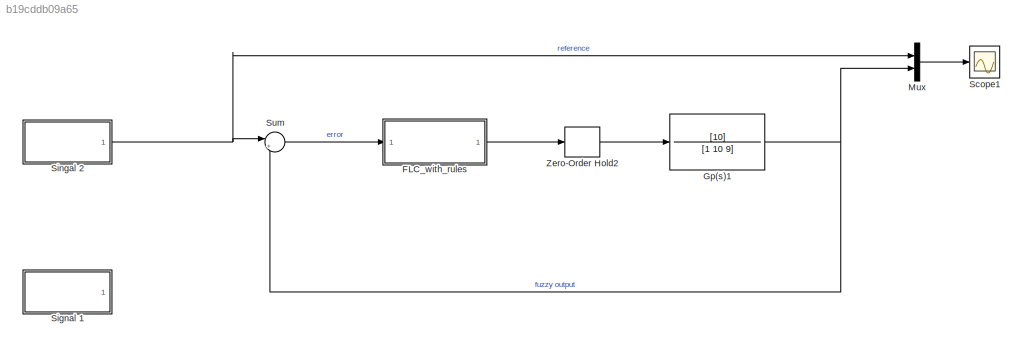
MODEL slx_b19cddb09a65
KIND model
CONFIG AbsTol = auto
CONFIG EnableMultiTasking = off
CONFIG FixedStep = auto
CONFIG MaxStep = auto
CONFIG MinStep = auto
CONFIG RelTol = 1e-3
CONFIG SampleTimeConstraint = Unconstrained
CONFIG Solver = VariableStepAuto
CONFIG SolverName = VariableStepAuto
CONFIG StartTime = 0.0
CONFIG StopTime = 12
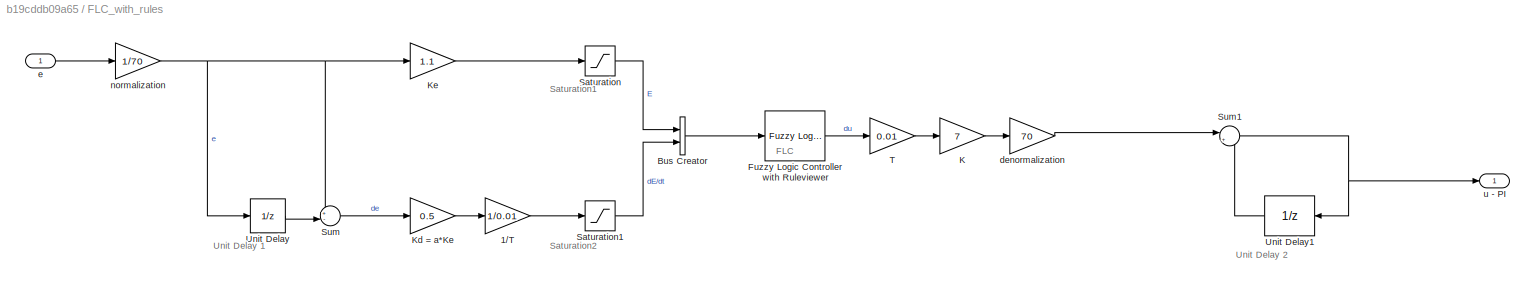
BLOCK [SubSystem] FLC_with_rules
  Ports = [1, 1]
  RequestExecContextInheritance = off
BLOCK [Gain] FLC_with_rules/1//T
  Gain = 1/0.01
  OutDataTypeStr = Inherit: Inherit via internal rule
  ParamDataTypeStr = Inherit: Inherit via internal rule
  SaturateOnIntegerOverflow = off
BLOCK [BusCreator] FLC_with_rules/Bus Creator
  DisplayOption = bar
  InheritFromInputs = on
  Inputs = 2
  Ports = [2, 1]
BLOCK [Reference] FLC_with_rules/Fuzzy Logic Controller with Ruleviewer  REF=fuzblock/Fuzzy Logic   (lib defined in mdl_858b3b3e7478)
Controller 
with Ruleviewer
  Ports = [1, 1]
  SourceBlock = fuzblock/Fuzzy Logic \nController \nwith Ruleviewer
  SourceProductBaseCode = FL
  SourceProductName = Fuzzy Logic Toolbox
  SourceType = Fuzzy Inference System
BLOCK [Gain] FLC_with_rules/K
  Gain = 7
  OutDataTypeStr = Inherit: Inherit via internal rule
  ParamDataTypeStr = Inherit: Inherit via internal rule
  SaturateOnIntegerOverflow = off
BLOCK [Gain] FLC_with_rules/Kd = a*Ke
  Gain = 0.5
  OutDataTypeStr = Inherit: Inherit via internal rule
  ParamDataTypeStr = Inherit: Inherit via internal rule
  SaturateOnIntegerOverflow = off
BLOCK [Gain] FLC_with_rules/Ke
  Gain = 1.1
  OutDataTypeStr = Inherit: Inherit via internal rule
  ParamDataTypeStr = Inherit: Inherit via internal rule
  SaturateOnIntegerOverflow = off
BLOCK [Saturate] FLC_with_rules/Saturation
  InputPortMap = u0
  LowerLimit = -1
  Ports = [1, 1]
  UpperLimit = 1
BLOCK [Saturate] FLC_with_rules/Saturation1
  InputPortMap = u0
  LowerLimit = -1
  Ports = [1, 1]
  UpperLimit = 1
BLOCK [Sum] FLC_with_rules/Sum
  IconShape = round
  InputSameDT = off
  Inputs = +-|
  OutDataTypeStr = Inherit: Inherit via internal rule
  Ports = [2, 1]
  SaturateOnIntegerOverflow = off
BLOCK [Sum] FLC_with_rules/Sum1
  IconShape = round
  InputSameDT = off
  Inputs = |++
  OutDataTypeStr = Inherit: Inherit via internal rule
  Ports = [2, 1]
  SaturateOnIntegerOverflow = off
BLOCK [Gain] FLC_with_rules/T
  Gain = 0.01
  OutDataTypeStr = Inherit: Inherit via internal rule
  ParamDataTypeStr = Inherit: Inherit via internal rule
  SaturateOnIntegerOverflow = off
BLOCK [UnitDelay] FLC_with_rules/Unit Delay
  HasFrameUpgradeWarning = on
  SampleTime = -1
BLOCK [UnitDelay] FLC_with_rules/Unit Delay1
  HasFrameUpgradeWarning = on
  SampleTime = -1
BLOCK [Gain] FLC_with_rules/denormalization
  Gain = 70
  OutDataTypeStr = Inherit: Inherit via internal rule
  ParamDataTypeStr = Inherit: Inherit via internal rule
  SaturateOnIntegerOverflow = off
BLOCK [Inport] FLC_with_rules/e
  IconDisplay = Port number
BLOCK [Gain] FLC_with_rules/normalization
  Gain = 1/70
  OutDataTypeStr = Inherit: Inherit via internal rule
  ParamDataTypeStr = Inherit: Inherit via internal rule
  SaturateOnIntegerOverflow = off
BLOCK [Outport] FLC_with_rules/u - PI
  IconDisplay = Port number
BLOCK [TransferFcn] Gp(s)1
  Denominator = [1 10 9]
  Numerator = [10]
BLOCK [Mux] Mux
  DisplayOption = bar
  Inputs = 2
  Ports = [2, 1]
BLOCK [Scope] Scope1
  Floating = off
  NumInputPorts = 1
  Ports = [1]
  ScopeSpecificationString = Simulink.scopes.TimeScopeBlockCfg('CurrentConfiguration', extmgr.ConfigurationSet(extmgr.Configuration('Core','General UI',true),extmgr.Configuration('Core','Source UI',true),extmgr.Configuration('Sources','WiredSimulink',true,'DataLogging',true,'DataLoggingVariableName','ScopeData1'),extmgr.Configuration('Visuals','Time Domain',true,'SerializedDisplays',{struct('MinYLimReal','-7.66699','MaxYLimRe...<+1843ch>
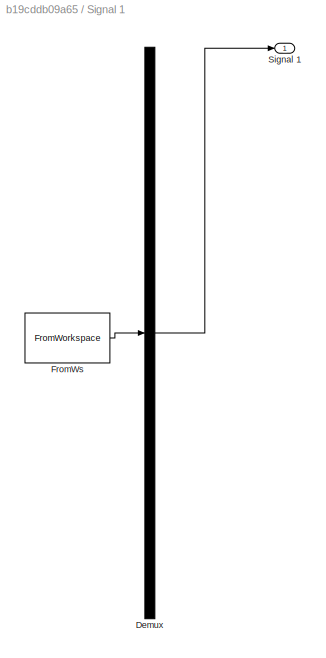
BLOCK [SubSystem] Signal 1
  ClipboardFcn = sigbuilder_block('clipboard');
  CloseFcn = sigbuilder_block('close');
  Commented = on
  ContinueFcn = sigbuilder_block('continue');
  CopyFcn = sigbuilder_block('copy');
  DeleteFcn = sigbuilder_block('delete');
  LoadFcn = sigbuilder_block('load');
  MaskHideContents = on
  ModelCloseFcn = sigbuilder_block('modelClose');
  NameChangeFcn = sigbuilder_block('namechange');
  OpenFcn = sigbuilder_block('open',[732 160.5 550.5 399.75 ]);
  PauseFcn = sigbuilder_block('pause');
  Ports = [0, 1]
  PreSaveFcn = sigbuilder_block('preSave');
  RequestExecContextInheritance = off
  StartFcn = sigbuilder_block('start');
  StopFcn = sigbuilder_block('stop');
  Tag = STV Subsys
BLOCK [Demux] Signal 1/Demux
  Outputs = 1
  Ports = [1, 1]
  Tag = STV Demux
BLOCK [FromWorkspace] Signal 1/FromWs
  SampleTime = 0
  Tag = STV FromWs
  VariableName = tuvar
  ZeroCross = on
BLOCK [Outport] Signal 1/Signal 1
  IconDisplay = Port number
  Tag = STV Outport
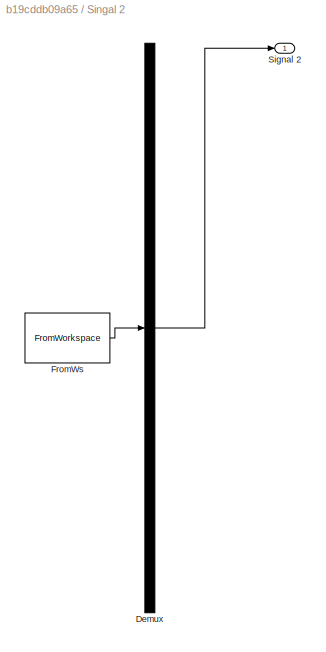
BLOCK [SubSystem] Singal 2
  ClipboardFcn = sigbuilder_block('clipboard');
  CloseFcn = sigbuilder_block('close');
  ContinueFcn = sigbuilder_block('continue');
  CopyFcn = sigbuilder_block('copy');
  DeleteFcn = sigbuilder_block('delete');
  LoadFcn = sigbuilder_block('load');
  MaskHideContents = on
  ModelCloseFcn = sigbuilder_block('modelClose');
  NameChangeFcn = sigbuilder_block('namechange');
  OpenFcn = sigbuilder_block('open',[858.75 216 550.5 399.75 ]);
  PauseFcn = sigbuilder_block('pause');
  Ports = [0, 1]
  PreSaveFcn = sigbuilder_block('preSave');
  RequestExecContextInheritance = off
  StartFcn = sigbuilder_block('start');
  StopFcn = sigbuilder_block('stop');
  Tag = STV Subsys
BLOCK [Demux] Singal 2/Demux
  Outputs = 1
  Ports = [1, 1]
  Tag = STV Demux
BLOCK [FromWorkspace] Singal 2/FromWs
  SampleTime = 0
  Tag = STV FromWs
  VariableName = tuvar
  ZeroCross = on
BLOCK [Outport] Singal 2/Signal 2
  IconDisplay = Port number
  Tag = STV Outport
BLOCK [Sum] Sum
  IconShape = round
  InputSameDT = off
  Inputs = |+-
  OutDataTypeStr = Inherit: Inherit via internal rule
  Ports = [2, 1]
  SaturateOnIntegerOverflow = off
BLOCK [ZeroOrderHold] Zero-Order Hold2
  SampleTime = 0.01
ANNOTATION FLC_with_rules: FLC
ANNOTATION FLC_with_rules: Saturation1
ANNOTATION FLC_with_rules: Saturation2
ANNOTATION FLC_with_rules: Unit Delay 1
ANNOTATION FLC_with_rules: Unit Delay 2
LINE FLC_with_rules/1//T:1 -> FLC_with_rules/Saturation1:1
LINE FLC_with_rules/Bus Creator:1 -> FLC_with_rules/Fuzzy Logic Controller with Ruleviewer:1
LINE FLC_with_rules/Fuzzy Logic Controller with Ruleviewer:1 -> FLC_with_rules/T:1
LINE FLC_with_rules/K:1 -> FLC_with_rules/denormalization:1
LINE FLC_with_rules/Kd = a*Ke:1 -> FLC_with_rules/1//T:1
LINE FLC_with_rules/Ke:1 -> FLC_with_rules/Saturation:1
LINE FLC_with_rules/Saturation1:1 -> FLC_with_rules/Bus Creator:2
LINE FLC_with_rules/Saturation:1 -> FLC_with_rules/Bus Creator:1
NET FLC_with_rules/Sum1:1 -> FLC_with_rules/Unit Delay1:1, FLC_with_rules/u - PI:1
LINE FLC_with_rules/Sum:1 -> FLC_with_rules/Kd = a*Ke:1
LINE FLC_with_rules/T:1 -> FLC_with_rules/K:1
LINE FLC_with_rules/Unit Delay1:1 -> FLC_with_rules/Sum1:2
LINE FLC_with_rules/Unit Delay:1 -> FLC_with_rules/Sum:2
LINE FLC_with_rules/denormalization:1 -> FLC_with_rules/Sum1:1
LINE FLC_with_rules/e:1 -> FLC_with_rules/normalization:1
NET FLC_with_rules/normalization:1 -> FLC_with_rules/Ke:1, FLC_with_rules/Sum:1, FLC_with_rules/Unit Delay:1
LINE FLC_with_rules:1 -> Zero-Order Hold2:1
NET Gp(s)1:1 -> Mux:2, Sum:2
LINE Mux:1 -> Scope1:1
NET Singal 2:1 -> Mux:1, Sum:1
LINE Sum:1 -> FLC_with_rules:1
LINE Zero-Order Hold2:1 -> Gp(s)1:1
note: NET lines group one-source signal fan-out (src -> all destinations, sorted); 1:1 wires keep LINE
